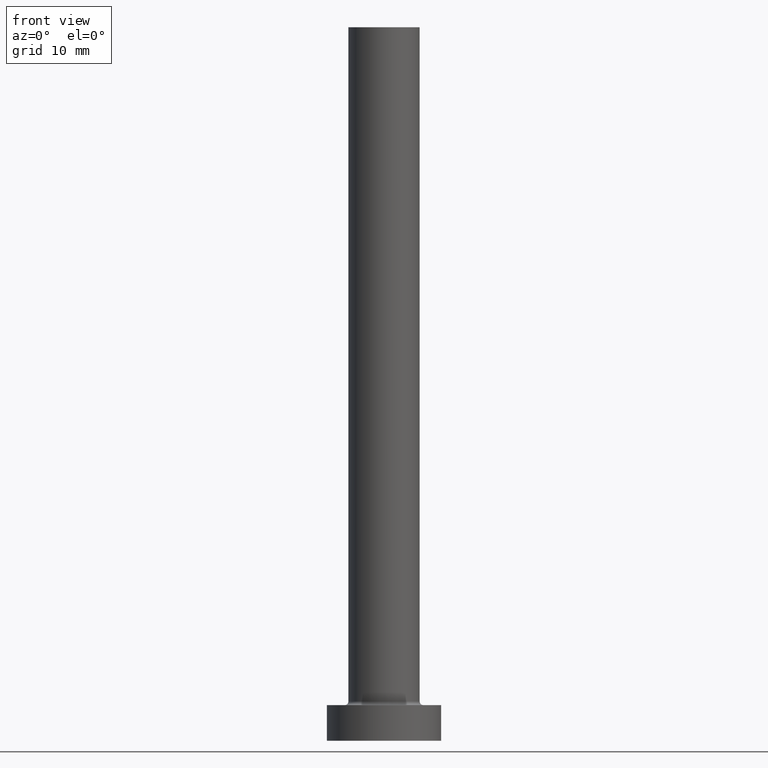
[diagram: clean part render]
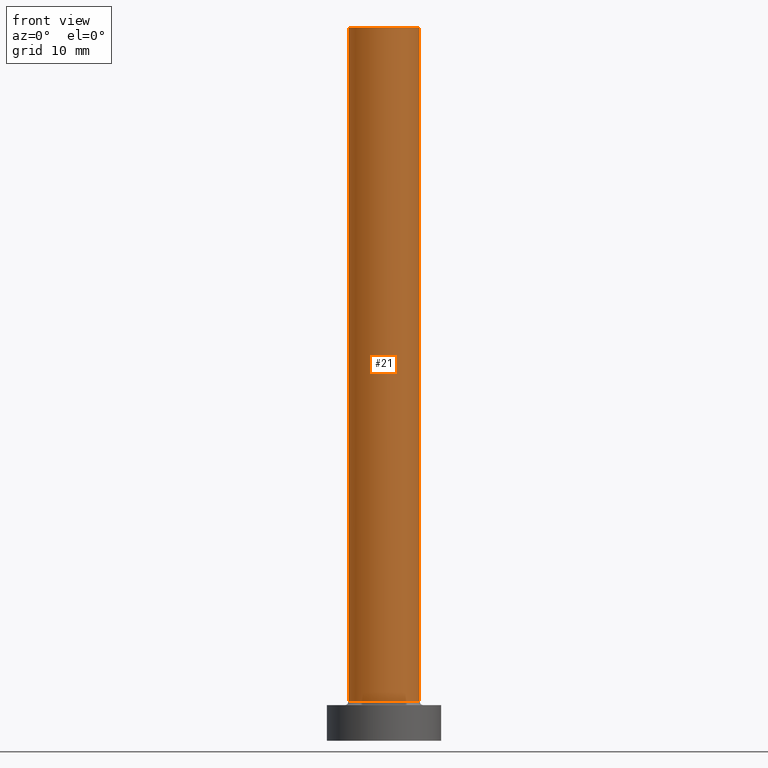
[diagram: same view with one face highlighted and labeled with its STEP entity id]
A machine part, front view. The second image highlights one B-rep face of the part: STEP entity #21.
In plain terms, the highlighted cylindrical surface (edge-blend (fillet) strip) has radius 5 mm, axis along (-0, -0, -1).
Its self-contained STEP definition (entity closure, byte-faithful):
#4 = VERTEX_POINT ( 'NONE', #99 ) ;
#11 = DIRECTION ( 'NONE',  ( 1.000000000000000000, 0.000000000000000000, 0.000000000000000000 ) ) ;
#15 = CARTESIAN_POINT ( 'NONE',  ( 0.000000000000000000, 0.000000000000000000, 5.500000000000005329 ) ) ;
#21 = ADVANCED_FACE ( 'NONE', ( #37 ), #383, .T. ) ;
#27 = EDGE_CURVE ( 'NONE', #43, #331, #154, .T. ) ;
#32 = DIRECTION ( 'NONE',  ( -1.000000000000000000, 0.000000000000000000, 0.000000000000000000 ) ) ;
#37 = FACE_OUTER_BOUND ( 'NONE', #416, .T. ) ;
#43 = VERTEX_POINT ( 'NONE', #296 ) ;
#45 = ORIENTED_EDGE ( 'NONE', *, *, #27, .T. ) ;
#53 = AXIS2_PLACEMENT_3D ( 'NONE', #161, #374, #11 ) ;
#55 = LINE ( 'NONE', #439, #395 ) ;
#68 = CARTESIAN_POINT ( 'NONE',  ( 0.000000000000000000, 0.000000000000000000, 100.0000000000000000 ) ) ;
#69 = AXIS2_PLACEMENT_3D ( 'NONE', #15, #326, #259 ) ;
#75 = VERTEX_POINT ( 'NONE', #408 ) ;
#99 = CARTESIAN_POINT ( 'NONE',  ( -5.000000000000000000, 0.000000000000000000, 100.0000000000000000 ) ) ;
#114 = EDGE_CURVE ( 'NONE', #4, #43, #228, .T. ) ;
#121 = CIRCLE ( 'NONE', #53, 5.000000000000000000 ) ;
#123 = CARTESIAN_POINT ( 'NONE',  ( 5.000000000000000000, 6.123233995736766282E-16, 5.500000000000005329 ) ) ;
#154 = CIRCLE ( 'NONE', #69, 5.000000000000000000 ) ;
#161 = CARTESIAN_POINT ( 'NONE',  ( 0.000000000000000000, 0.000000000000000000, 100.0000000000000000 ) ) ;
#164 = EDGE_CURVE ( 'NONE', #75, #331, #55, .T. ) ;
#169 = DIRECTION ( 'NONE',  ( -0.000000000000000000, -0.000000000000000000, -1.000000000000000000 ) ) ;
#176 = DIRECTION ( 'NONE',  ( -0.000000000000000000, -0.000000000000000000, -1.000000000000000000 ) ) ;
#228 = LINE ( 'NONE', #344, #440 ) ;
#235 = ORIENTED_EDGE ( 'NONE', *, *, #393, .F. ) ;
#259 = DIRECTION ( 'NONE',  ( 1.000000000000000000, 0.000000000000000000, 0.000000000000000000 ) ) ;
#265 = DIRECTION ( 'NONE',  ( -0.000000000000000000, -0.000000000000000000, -1.000000000000000000 ) ) ;
#272 = ORIENTED_EDGE ( 'NONE', *, *, #164, .F. ) ;
#282 = ORIENTED_EDGE ( 'NONE', *, *, #114, .T. ) ;
#296 = CARTESIAN_POINT ( 'NONE',  ( -5.000000000000000000, 0.000000000000000000, 5.500000000000005329 ) ) ;
#299 = AXIS2_PLACEMENT_3D ( 'NONE', #68, #176, #32 ) ;
#326 = DIRECTION ( 'NONE',  ( 0.000000000000000000, 0.000000000000000000, 1.000000000000000000 ) ) ;
#331 = VERTEX_POINT ( 'NONE', #123 ) ;
#344 = CARTESIAN_POINT ( 'NONE',  ( -5.000000000000000000, 0.000000000000000000, 100.0000000000000000 ) ) ;
#374 = DIRECTION ( 'NONE',  ( 0.000000000000000000, 0.000000000000000000, 1.000000000000000000 ) ) ;
#383 = CYLINDRICAL_SURFACE ( 'NONE', #299, 5.000000000000000000 ) ;
#393 = EDGE_CURVE ( 'NONE', #4, #75, #121, .T. ) ;
#395 = VECTOR ( 'NONE', #265, 1000.000000000000000 ) ;
#408 = CARTESIAN_POINT ( 'NONE',  ( 5.000000000000000000, 6.123233995736766282E-16, 100.0000000000000000 ) ) ;
#416 = EDGE_LOOP ( 'NONE', ( #272, #235, #282, #45 ) ) ;
#439 = CARTESIAN_POINT ( 'NONE',  ( 5.000000000000000000, 6.123233995736766282E-16, 100.0000000000000000 ) ) ;
#440 = VECTOR ( 'NONE', #169, 1000.000000000000000 ) ;